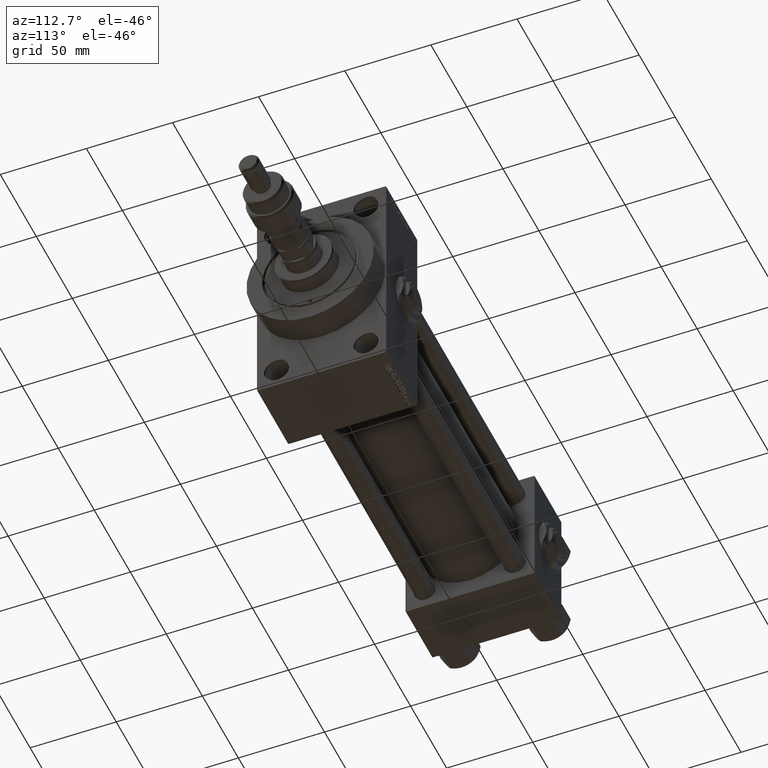
[diagram: clean part render]
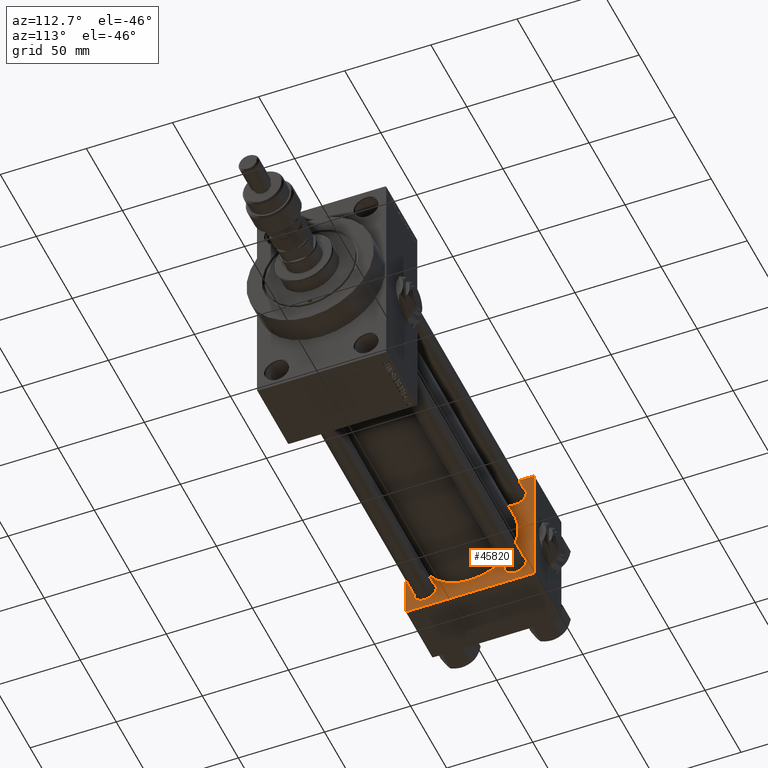
[diagram: same view with one face highlighted and labeled with its STEP entity id]
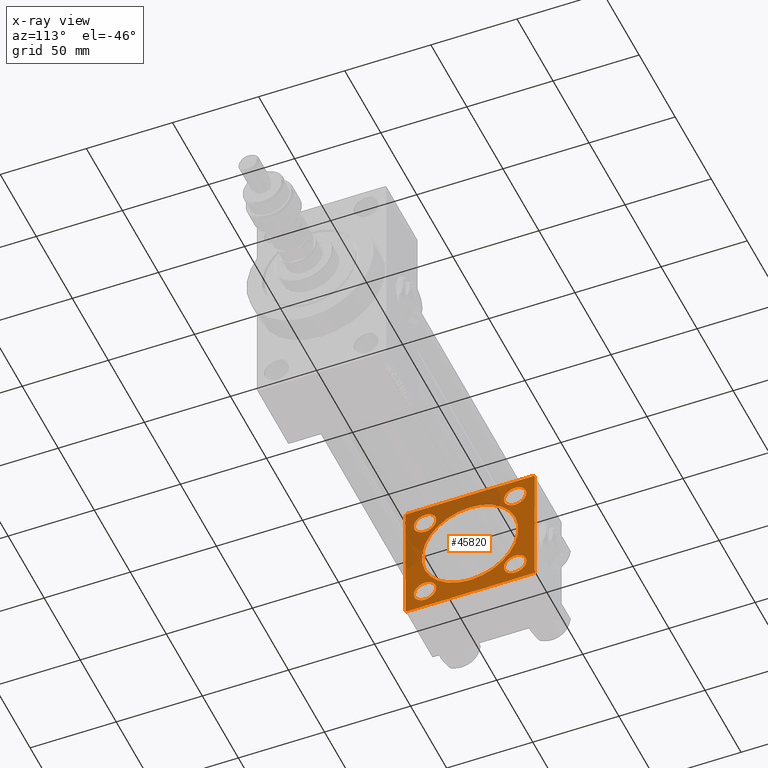
[diagram: x-ray of the same camera — body ghosted, the highlighted face saturated]
A machine part, auxiliary view. The second image highlights one B-rep face of the part: STEP entity #45820.
The next image is the same camera in x-ray: the body ghosted, the highlighted face saturated — about 32% of this face is hidden behind the body in this view.
In plain terms, the highlighted planar face has unit normal (-1, 0, 0).
Its self-contained STEP definition (entity closure, byte-faithful):
#1528 = LINE ( 'NONE', #38295, #25234 ) ;
#2253 = DIRECTION ( 'NONE',  ( 0.000000000000000000, 0.000000000000000000, 1.000000000000000000 ) ) ;
#2631 = AXIS2_PLACEMENT_3D ( 'NONE', #32666, #28435, #8328 ) ;
#3347 = CARTESIAN_POINT ( 'NONE',  ( 37.00000000000000000, 37.49999999999999289, -37.50000000000000000 ) ) ;
#4296 = CARTESIAN_POINT ( 'NONE',  ( 37.00000000000000000, -26.14999999999999147, 19.64999999999997371 ) ) ;
#4489 = CARTESIAN_POINT ( 'NONE',  ( 37.00000000000000000, -26.14999999999999147, -32.65000000000004121 ) ) ;
#4855 = DIRECTION ( 'NONE',  ( 0.000000000000000000, 0.000000000000000000, 1.000000000000000000 ) ) ;
#5080 = VERTEX_POINT ( 'NONE', #4296 ) ;
#5131 = CIRCLE ( 'NONE', #2631, 6.500000000000030198 ) ;
#5248 = LINE ( 'NONE', #34335, #10849 ) ;
#5789 = EDGE_LOOP ( 'NONE', ( #35594, #44051 ) ) ;
#6274 = FACE_BOUND ( 'NONE', #48018, .T. ) ;
#6526 = ORIENTED_EDGE ( 'NONE', *, *, #14386, .T. ) ;
#6853 = DIRECTION ( 'NONE',  ( -0.000000000000000000, 0.7071067811865474617, 0.7071067811865474617 ) ) ;
#6893 = ORIENTED_EDGE ( 'NONE', *, *, #13521, .F. ) ;
#7284 = ORIENTED_EDGE ( 'NONE', *, *, #47166, .T. ) ;
#7621 = CIRCLE ( 'NONE', #37193, 6.500000000000037303 ) ;
#7937 = VERTEX_POINT ( 'NONE', #19627 ) ;
#8046 = DIRECTION ( 'NONE',  ( -1.000000000000000000, 0.000000000000000000, -0.000000000000000000 ) ) ;
#8328 = DIRECTION ( 'NONE',  ( 0.000000000000000000, 0.000000000000000000, 1.000000000000000000 ) ) ;
#8862 = CARTESIAN_POINT ( 'NONE',  ( 37.00000000000000000, 37.49999999999999289, 37.00000000000000000 ) ) ;
#9101 = VECTOR ( 'NONE', #38038, 1000.000000000000114 ) ;
#9643 = LINE ( 'NONE', #18358, #26364 ) ;
#9964 = AXIS2_PLACEMENT_3D ( 'NONE', #47139, #31799, #27572 ) ;
#10340 = CIRCLE ( 'NONE', #40754, 6.500000000000030198 ) ;
#10744 = ORIENTED_EDGE ( 'NONE', *, *, #24823, .T. ) ;
#10849 = VECTOR ( 'NONE', #30102, 1000.000000000000114 ) ;
#11096 = VERTEX_POINT ( 'NONE', #29185 ) ;
#11269 = ORIENTED_EDGE ( 'NONE', *, *, #36521, .T. ) ;
#11474 = CARTESIAN_POINT ( 'NONE',  ( 37.00000000000000000, -26.14999999999999147, -19.64999999999998082 ) ) ;
#11556 = DIRECTION ( 'NONE',  ( 0.000000000000000000, -1.000000000000000000, -9.251858538542972814E-17 ) ) ;
#11926 = VERTEX_POINT ( 'NONE', #24198 ) ;
#12579 = VERTEX_POINT ( 'NONE', #44691 ) ;
#12601 = VERTEX_POINT ( 'NONE', #4489 ) ;
#12665 = VERTEX_POINT ( 'NONE', #18191 ) ;
#13332 = EDGE_LOOP ( 'NONE', ( #35279, #35020 ) ) ;
#13471 = EDGE_CURVE ( 'NONE', #51858, #46706, #5248, .T. ) ;
#13521 = EDGE_CURVE ( 'NONE', #25318, #29857, #1528, .T. ) ;
#13628 = AXIS2_PLACEMENT_3D ( 'NONE', #35859, #47751, #23190 ) ;
#13709 = CARTESIAN_POINT ( 'NONE',  ( 37.00000000000000000, 36.99999999999999289, 37.50000000000000000 ) ) ;
#13955 = DIRECTION ( 'NONE',  ( -1.000000000000000000, 0.000000000000000000, -0.000000000000000000 ) ) ;
#14386 = EDGE_CURVE ( 'NONE', #7937, #48942, #25268, .T. ) ;
#14974 = ORIENTED_EDGE ( 'NONE', *, *, #37516, .T. ) ;
#14996 = CARTESIAN_POINT ( 'NONE',  ( 37.00000000000000000, 36.99999999999997868, -37.50000000000000000 ) ) ;
#15023 = CIRCLE ( 'NONE', #9964, 6.500000000000030198 ) ;
#15148 = EDGE_CURVE ( 'NONE', #11926, #51858, #46622, .T. ) ;
#15292 = CIRCLE ( 'NONE', #50786, 6.500000000000030198 ) ;
#16275 = EDGE_LOOP ( 'NONE', ( #14974, #51192 ) ) ;
#17633 = AXIS2_PLACEMENT_3D ( 'NONE', #35961, #51046, #30966 ) ;
#17663 = FACE_BOUND ( 'NONE', #5789, .T. ) ;
#17822 = DIRECTION ( 'NONE',  ( 1.000000000000000000, -0.000000000000000000, 0.000000000000000000 ) ) ;
#17920 = FACE_BOUND ( 'NONE', #13332, .T. ) ;
#18191 = CARTESIAN_POINT ( 'NONE',  ( 37.00000000000000000, 26.14999999999999858, -19.64999999999997371 ) ) ;
#18358 = CARTESIAN_POINT ( 'NONE',  ( 37.00000000000000000, -37.00000000000002132, -37.50000000000000711 ) ) ;
#18925 = EDGE_CURVE ( 'NONE', #12665, #12579, #15292, .T. ) ;
#19116 = CARTESIAN_POINT ( 'NONE',  ( 37.00000000000000000, 37.49999999999999289, 37.50000000000000000 ) ) ;
#19189 = EDGE_CURVE ( 'NONE', #51027, #27173, #35577, .T. ) ;
#19627 = CARTESIAN_POINT ( 'NONE',  ( 37.00000000000000000, 26.14999999999999858, 32.65000000000004121 ) ) ;
#20511 = EDGE_LOOP ( 'NONE', ( #37736, #27479, #6893, #11269, #40872, #23513, #7284, #29219 ) ) ;
#20954 = VERTEX_POINT ( 'NONE', #34892 ) ;
#21180 = EDGE_CURVE ( 'NONE', #11096, #20954, #9643, .T. ) ;
#21183 = VECTOR ( 'NONE', #47970, 1000.000000000000000 ) ;
#21786 = CARTESIAN_POINT ( 'NONE',  ( 37.00000000000000711, -2.602085213965210642E-15, 0.000000000000000000 ) ) ;
#21807 = DIRECTION ( 'NONE',  ( 0.000000000000000000, 0.7071067811865524577, -0.7071067811865426878 ) ) ;
#22296 = EDGE_CURVE ( 'NONE', #12579, #12665, #26409, .T. ) ;
#22424 = PLANE ( 'NONE',  #24533 ) ;
#22687 = DIRECTION ( 'NONE',  ( -0.000000000000000000, 0.000000000000000000, 1.000000000000000000 ) ) ;
#23190 = DIRECTION ( 'NONE',  ( 0.000000000000000000, 0.000000000000000000, 1.000000000000000000 ) ) ;
#23418 = DIRECTION ( 'NONE',  ( -1.000000000000000000, 0.000000000000000000, -0.000000000000000000 ) ) ;
#23513 = ORIENTED_EDGE ( 'NONE', *, *, #13471, .T. ) ;
#24198 = CARTESIAN_POINT ( 'NONE',  ( 37.00000000000000000, 36.99999999999999289, 37.50000000000000000 ) ) ;
#24260 = LINE ( 'NONE', #3347, #52104 ) ;
#24533 = AXIS2_PLACEMENT_3D ( 'NONE', #26135, #13955, #22687 ) ;
#24696 = EDGE_LOOP ( 'NONE', ( #10744, #6526 ) ) ;
#24823 = EDGE_CURVE ( 'NONE', #48942, #7937, #10340, .T. ) ;
#24887 = CARTESIAN_POINT ( 'NONE',  ( 37.00000000000000000, -26.14999999999999147, 32.65000000000004832 ) ) ;
#25101 = DIRECTION ( 'NONE',  ( 0.000000000000000000, 0.000000000000000000, -1.000000000000000000 ) ) ;
#25234 = VECTOR ( 'NONE', #25101, 1000.000000000000000 ) ;
#25268 = CIRCLE ( 'NONE', #17633, 6.500000000000030198 ) ;
#25318 = VERTEX_POINT ( 'NONE', #8862 ) ;
#25488 = CIRCLE ( 'NONE', #13628, 6.500000000000037303 ) ;
#26135 = CARTESIAN_POINT ( 'NONE',  ( 37.00000000000000000, 0.000000000000000000, 0.000000000000000000 ) ) ;
#26364 = VECTOR ( 'NONE', #21807, 1000.000000000000000 ) ;
#26409 = CIRCLE ( 'NONE', #36561, 6.500000000000030198 ) ;
#27168 = AXIS2_PLACEMENT_3D ( 'NONE', #21786, #17822, #37400 ) ;
#27173 = VERTEX_POINT ( 'NONE', #49605 ) ;
#27470 = AXIS2_PLACEMENT_3D ( 'NONE', #49610, #49877, #38237 ) ;
#27479 = ORIENTED_EDGE ( 'NONE', *, *, #42919, .T. ) ;
#27572 = DIRECTION ( 'NONE',  ( 0.000000000000000000, 0.000000000000000000, 1.000000000000000000 ) ) ;
#28031 = EDGE_CURVE ( 'NONE', #27173, #51027, #50251, .T. ) ;
#28435 = DIRECTION ( 'NONE',  ( -1.000000000000000000, 0.000000000000000000, -0.000000000000000000 ) ) ;
#28940 = CARTESIAN_POINT ( 'NONE',  ( 37.00000000000000000, 37.49999999999999289, -36.99999999999998579 ) ) ;
#29185 = CARTESIAN_POINT ( 'NONE',  ( 37.00000000000000000, -37.50000000000000000, -37.00000000000003553 ) ) ;
#29219 = ORIENTED_EDGE ( 'NONE', *, *, #21180, .T. ) ;
#29857 = VERTEX_POINT ( 'NONE', #28940 ) ;
#30102 = DIRECTION ( 'NONE',  ( -0.000000000000000000, -0.7071067811865474617, -0.7071067811865474617 ) ) ;
#30638 = CARTESIAN_POINT ( 'NONE',  ( 37.00000000000000000, -37.50000000000000711, 37.49999999999999289 ) ) ;
#30763 = CARTESIAN_POINT ( 'NONE',  ( 37.00000000000000000, 26.14999999999999858, -26.15000000000000213 ) ) ;
#30966 = DIRECTION ( 'NONE',  ( 0.000000000000000000, 0.000000000000000000, 1.000000000000000000 ) ) ;
#31175 = CARTESIAN_POINT ( 'NONE',  ( 37.00000000000000000, -37.00000000000000711, 37.49999999999999289 ) ) ;
#31501 = VERTEX_POINT ( 'NONE', #24887 ) ;
#31799 = DIRECTION ( 'NONE',  ( -1.000000000000000000, 0.000000000000000000, -0.000000000000000000 ) ) ;
#31998 = VECTOR ( 'NONE', #6853, 1000.000000000000114 ) ;
#32666 = CARTESIAN_POINT ( 'NONE',  ( 37.00000000000000000, -26.14999999999999147, -26.15000000000000924 ) ) ;
#34335 = CARTESIAN_POINT ( 'NONE',  ( 37.00000000000000000, -37.50000000000000711, 36.99999999999999289 ) ) ;
#34546 = CARTESIAN_POINT ( 'NONE',  ( 37.00000000000000000, 26.14999999999999858, -26.15000000000000213 ) ) ;
#34892 = CARTESIAN_POINT ( 'NONE',  ( 37.00000000000000000, -37.00000000000002132, -37.50000000000000711 ) ) ;
#35016 = ORIENTED_EDGE ( 'NONE', *, *, #46280, .T. ) ;
#35020 = ORIENTED_EDGE ( 'NONE', *, *, #18925, .T. ) ;
#35251 = DIRECTION ( 'NONE',  ( 0.000000000000000000, -1.000000000000000000, -9.251858538542971581E-17 ) ) ;
#35279 = ORIENTED_EDGE ( 'NONE', *, *, #22296, .T. ) ;
#35577 = CIRCLE ( 'NONE', #27168, 28.00000000000000000 ) ;
#35594 = ORIENTED_EDGE ( 'NONE', *, *, #19189, .F. ) ;
#35641 = VERTEX_POINT ( 'NONE', #14996 ) ;
#35755 = CARTESIAN_POINT ( 'NONE',  ( 37.00000000000000000, -37.50000000000000711, 36.99999999999999289 ) ) ;
#35763 = EDGE_CURVE ( 'NONE', #35641, #20954, #24260, .T. ) ;
#35859 = CARTESIAN_POINT ( 'NONE',  ( 37.00000000000000000, -26.14999999999999147, 26.15000000000000924 ) ) ;
#35961 = CARTESIAN_POINT ( 'NONE',  ( 37.00000000000000000, 26.14999999999999858, 26.15000000000000213 ) ) ;
#36521 = EDGE_CURVE ( 'NONE', #25318, #11926, #49161, .T. ) ;
#36561 = AXIS2_PLACEMENT_3D ( 'NONE', #34546, #23418, #2253 ) ;
#37193 = AXIS2_PLACEMENT_3D ( 'NONE', #47962, #8046, #4855 ) ;
#37400 = DIRECTION ( 'NONE',  ( 0.000000000000000000, 0.000000000000000000, 1.000000000000000000 ) ) ;
#37516 = EDGE_CURVE ( 'NONE', #12601, #41239, #15023, .T. ) ;
#37736 = ORIENTED_EDGE ( 'NONE', *, *, #35763, .F. ) ;
#37760 = FACE_BOUND ( 'NONE', #16275, .T. ) ;
#38038 = DIRECTION ( 'NONE',  ( 0.000000000000000000, -0.7071067811865474617, 0.7071067811865474617 ) ) ;
#38237 = DIRECTION ( 'NONE',  ( 0.000000000000000000, 0.000000000000000000, 1.000000000000000000 ) ) ;
#38295 = CARTESIAN_POINT ( 'NONE',  ( 37.00000000000000000, 37.49999999999999289, 37.50000000000000000 ) ) ;
#39101 = DIRECTION ( 'NONE',  ( 0.000000000000000000, 0.000000000000000000, 1.000000000000000000 ) ) ;
#39794 = LINE ( 'NONE', #30638, #21183 ) ;
#40754 = AXIS2_PLACEMENT_3D ( 'NONE', #47548, #43346, #39101 ) ;
#40872 = ORIENTED_EDGE ( 'NONE', *, *, #15148, .T. ) ;
#41239 = VERTEX_POINT ( 'NONE', #11474 ) ;
#41272 = CARTESIAN_POINT ( 'NONE',  ( 37.00000000000000000, 26.14999999999999858, 19.64999999999997016 ) ) ;
#41428 = CARTESIAN_POINT ( 'NONE',  ( 37.00000000000000711, -2.602085213965210642E-15, 28.00000000000000000 ) ) ;
#42777 = FACE_BOUND ( 'NONE', #24696, .T. ) ;
#42919 = EDGE_CURVE ( 'NONE', #35641, #29857, #44134, .T. ) ;
#42926 = DIRECTION ( 'NONE',  ( -1.000000000000000000, 0.000000000000000000, -0.000000000000000000 ) ) ;
#42953 = ORIENTED_EDGE ( 'NONE', *, *, #48575, .T. ) ;
#43346 = DIRECTION ( 'NONE',  ( -1.000000000000000000, 0.000000000000000000, -0.000000000000000000 ) ) ;
#44051 = ORIENTED_EDGE ( 'NONE', *, *, #28031, .F. ) ;
#44134 = LINE ( 'NONE', #52061, #31998 ) ;
#44691 = CARTESIAN_POINT ( 'NONE',  ( 37.00000000000000000, 26.14999999999999858, -32.65000000000003411 ) ) ;
#45820 = ADVANCED_FACE ( 'NONE', ( #37760, #17920, #6274, #42777, #17663, #46211 ), #22424, .F. ) ;
#46211 = FACE_OUTER_BOUND ( 'NONE', #20511, .T. ) ;
#46280 = EDGE_CURVE ( 'NONE', #5080, #31501, #7621, .T. ) ;
#46622 = LINE ( 'NONE', #19116, #50634 ) ;
#46706 = VERTEX_POINT ( 'NONE', #35755 ) ;
#47139 = CARTESIAN_POINT ( 'NONE',  ( 37.00000000000000000, -26.14999999999999147, -26.15000000000000924 ) ) ;
#47166 = EDGE_CURVE ( 'NONE', #46706, #11096, #39794, .T. ) ;
#47340 = EDGE_CURVE ( 'NONE', #41239, #12601, #5131, .T. ) ;
#47548 = CARTESIAN_POINT ( 'NONE',  ( 37.00000000000000000, 26.14999999999999858, 26.15000000000000213 ) ) ;
#47751 = DIRECTION ( 'NONE',  ( -1.000000000000000000, 0.000000000000000000, -0.000000000000000000 ) ) ;
#47962 = CARTESIAN_POINT ( 'NONE',  ( 37.00000000000000000, -26.14999999999999147, 26.15000000000000924 ) ) ;
#47970 = DIRECTION ( 'NONE',  ( 0.000000000000000000, 9.251858538542971581E-17, -1.000000000000000000 ) ) ;
#48018 = EDGE_LOOP ( 'NONE', ( #35016, #42953 ) ) ;
#48575 = EDGE_CURVE ( 'NONE', #31501, #5080, #25488, .T. ) ;
#48942 = VERTEX_POINT ( 'NONE', #41272 ) ;
#49161 = LINE ( 'NONE', #13709, #9101 ) ;
#49605 = CARTESIAN_POINT ( 'NONE',  ( 37.00000000000000711, 8.269258236473784371E-16, -28.00000000000000000 ) ) ;
#49610 = CARTESIAN_POINT ( 'NONE',  ( 37.00000000000000711, -2.602085213965210642E-15, 0.000000000000000000 ) ) ;
#49877 = DIRECTION ( 'NONE',  ( 1.000000000000000000, -0.000000000000000000, 0.000000000000000000 ) ) ;
#50251 = CIRCLE ( 'NONE', #27470, 28.00000000000000000 ) ;
#50495 = DIRECTION ( 'NONE',  ( 0.000000000000000000, 0.000000000000000000, 1.000000000000000000 ) ) ;
#50634 = VECTOR ( 'NONE', #35251, 1000.000000000000000 ) ;
#50786 = AXIS2_PLACEMENT_3D ( 'NONE', #30763, #42926, #50495 ) ;
#51027 = VERTEX_POINT ( 'NONE', #41428 ) ;
#51046 = DIRECTION ( 'NONE',  ( -1.000000000000000000, 0.000000000000000000, -0.000000000000000000 ) ) ;
#51192 = ORIENTED_EDGE ( 'NONE', *, *, #47340, .T. ) ;
#51858 = VERTEX_POINT ( 'NONE', #31175 ) ;
#52061 = CARTESIAN_POINT ( 'NONE',  ( 37.00000000000000000, 37.49999999999999289, -36.99999999999998579 ) ) ;
#52104 = VECTOR ( 'NONE', #11556, 1000.000000000000000 ) ;